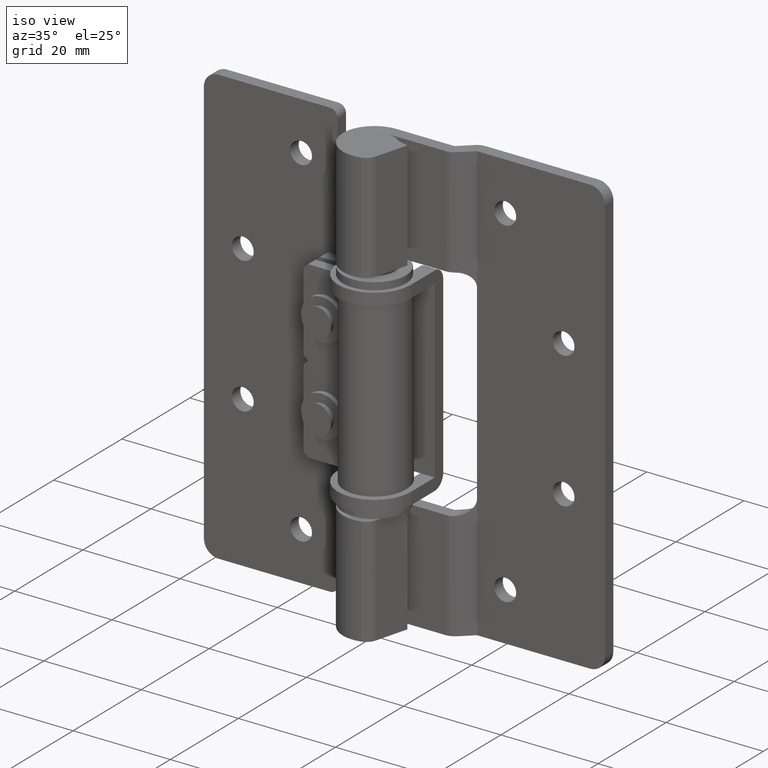
[diagram: clean part render]
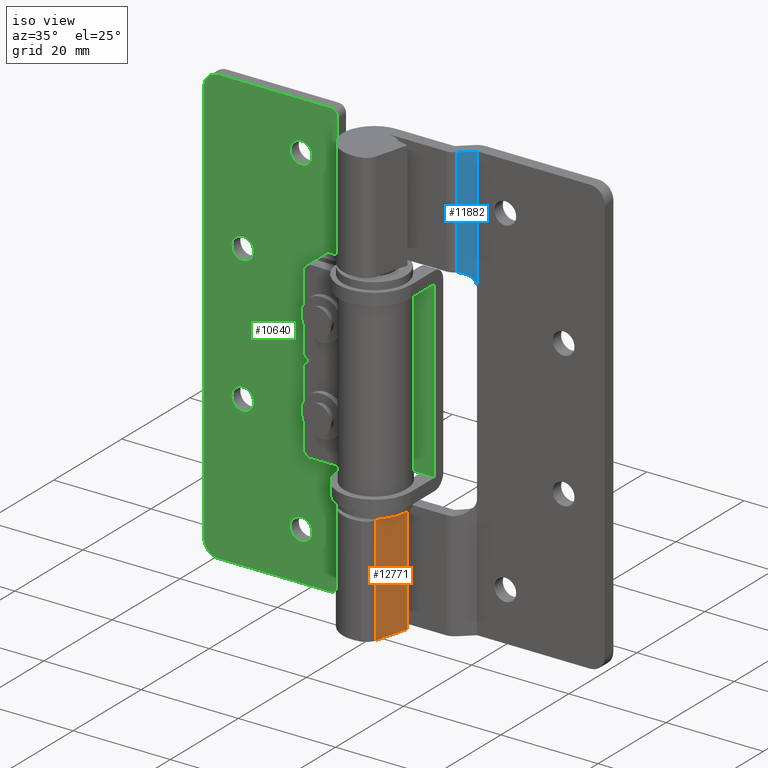
[diagram: same view with three faces highlighted in distinct colors, each labeled with its STEP entity id]
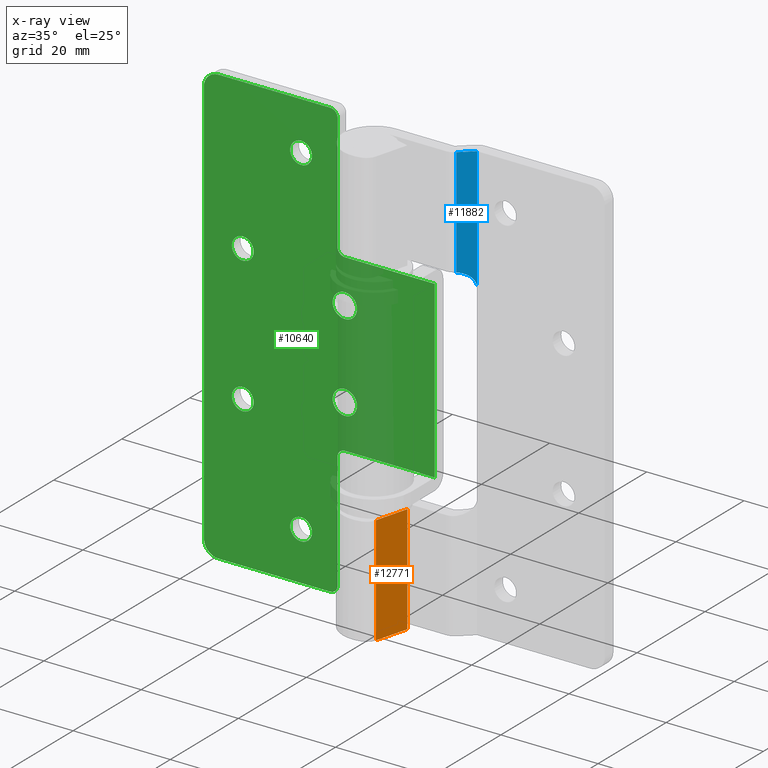
[diagram: x-ray of the same camera — body ghosted, the three highlighted faces saturated]
A machine part, iso view with three faces highlighted in distinct colors.
The next image is the same camera in x-ray (body ghosted, the three faces saturated) — at least one of them is partly hidden behind the body in this view.
Their STEP definitions:

[orange] entity #12771 — the highlighted face is a freeform B-spline surface patch.
#12330=CARTESIAN_POINT('',(3.450090746132370,-4.510750917912570,22.350000000000001));
#12331=VERTEX_POINT('',#12330);
#12345=CARTESIAN_POINT('',(5.243241690468611,2.181379511989865,22.350000000000001));
#12346=VERTEX_POINT('',#12345);
#12347=CARTESIAN_POINT('',(5.243241690468611,2.181379511989865,22.350000000000001));
#12348=CARTESIAN_POINT('',(3.450090746132370,-4.510750917912570,22.350000000000001));
#12349=QUASI_UNIFORM_CURVE('',1,(#12347,#12348),.UNSPECIFIED.,.F.,.U.);
#12350=EDGE_CURVE('',#12346,#12331,#12349,.T.);
#12550=CARTESIAN_POINT('',(5.243241690468611,2.181379511989860,0.0));
#12551=VERTEX_POINT('',#12550);
#12557=CARTESIAN_POINT('',(3.450090746132385,-4.510750917912570,0.0));
#12558=VERTEX_POINT('',#12557);
#12559=CARTESIAN_POINT('',(3.450090746132385,-4.510750917912570,0.0));
#12560=CARTESIAN_POINT('',(5.243241690468611,2.181379511989860,0.0));
#12561=QUASI_UNIFORM_CURVE('',1,(#12559,#12560),.UNSPECIFIED.,.F.,.U.);
#12562=EDGE_CURVE('',#12558,#12551,#12561,.T.);
#12747=CARTESIAN_POINT('',(5.243241690468611,2.181379511989865,22.350000000000001));
#12748=CARTESIAN_POINT('',(5.243241690468611,2.181379511989860,0.0));
#12749=QUASI_UNIFORM_CURVE('',1,(#12747,#12748),.UNSPECIFIED.,.F.,.U.);
#12750=EDGE_CURVE('',#12346,#12551,#12749,.T.);
#12756=CARTESIAN_POINT('',(5.332809576662730,2.515651413992844,-1.116382456681362));
#12757=CARTESIAN_POINT('',(3.360522811842194,-4.845022999412475,-1.116382456681362));
#12758=CARTESIAN_POINT('',(5.332809576662730,2.515651413992844,23.466383056155081));
#12759=CARTESIAN_POINT('',(3.360522811842194,-4.845022999412475,23.466383056155081));
#12760=B_SPLINE_SURFACE_WITH_KNOTS('',1,1,((#12756,#12758),(#12757,#12759)),.UNSPECIFIED.,.F.,.F.,.U.,(2,2),(2,2),(0.0,7.620330891952526),(0.0,24.582765512836438),.UNSPECIFIED.);
#12761=ORIENTED_EDGE('',*,*,#12750,.F.);
#12762=ORIENTED_EDGE('',*,*,#12350,.T.);
#12763=CARTESIAN_POINT('',(3.450090746132370,-4.510750917912570,22.350000000000001));
#12764=CARTESIAN_POINT('',(3.450090746132385,-4.510750917912570,0.0));
#12765=QUASI_UNIFORM_CURVE('',1,(#12763,#12764),.UNSPECIFIED.,.F.,.U.);
#12766=EDGE_CURVE('',#12331,#12558,#12765,.T.);
#12767=ORIENTED_EDGE('',*,*,#12766,.T.);
#12768=ORIENTED_EDGE('',*,*,#12562,.T.);
#12769=EDGE_LOOP('',(#12761,#12762,#12767,#12768));
#12770=FACE_OUTER_BOUND('',#12769,.T.);
#12771=ADVANCED_FACE('',(#12770),#12760,.F.);

[blue] entity #11882 — the highlighted face is a freeform B-spline surface patch.
#11454=CARTESIAN_POINT('',(16.199999999999999,7.000000000005000,64.650000000000006));
#11455=VERTEX_POINT('',#11454);
#11461=CARTESIAN_POINT('',(13.591825702712359,4.644609126216690,67.624302038916198));
#11462=VERTEX_POINT('',#11461);
#11463=CARTESIAN_POINT('',(16.199999999999999,7.000000000005000,64.650000000000006));
#11464=CARTESIAN_POINT('',(16.200000000000006,7.000000000016505,67.280708915743233));
#11465=CARTESIAN_POINT('',(13.591825702703289,4.644609126225073,67.624302038916198));
#11473=(BOUNDED_CURVE()B_SPLINE_CURVE(2,(#11463,#11464,#11465),.UNSPECIFIED.,.F.,.U.)CURVE()GEOMETRIC_REPRESENTATION_ITEM()QUASI_UNIFORM_CURVE()RATIONAL_B_SPLINE_CURVE((1.0,0.751867198236418,1.0))REPRESENTATION_ITEM(''));
#11474=EDGE_CURVE('',#11455,#11462,#11473,.T.);
#11631=CARTESIAN_POINT('',(13.591825702712359,4.644609126216690,90.0));
#11632=VERTEX_POINT('',#11631);
#11633=CARTESIAN_POINT('',(13.591825702712359,4.644609126216690,90.0));
#11634=CARTESIAN_POINT('',(13.591825702712359,4.644609126216690,67.624302038916198));
#11635=QUASI_UNIFORM_CURVE('',1,(#11633,#11634),.UNSPECIFIED.,.F.,.U.);
#11636=EDGE_CURVE('',#11632,#11462,#11635,.T.);
#11741=CARTESIAN_POINT('',(16.199999999999999,7.0,90.0));
#11742=VERTEX_POINT('',#11741);
#11748=CARTESIAN_POINT('',(16.199999999999999,7.0,90.0));
#11749=CARTESIAN_POINT('',(16.199999999999999,7.000000000005000,64.650000000000006));
#11750=QUASI_UNIFORM_CURVE('',1,(#11748,#11749),.UNSPECIFIED.,.F.,.U.);
#11751=EDGE_CURVE('',#11742,#11455,#11750,.T.);
#11867=CARTESIAN_POINT('',(16.330278301097039,7.117651769582565,63.383767549133232));
#11868=CARTESIAN_POINT('',(13.461547331661190,4.526957293459781,63.383767549133232));
#11869=CARTESIAN_POINT('',(16.330278301097039,7.117651769582565,91.266233130806768));
#11870=CARTESIAN_POINT('',(13.461547331661190,4.526957293459781,91.266233130806768));
#11871=B_SPLINE_SURFACE_WITH_KNOTS('',1,1,((#11867,#11869),(#11868,#11870)),.UNSPECIFIED.,.F.,.F.,.U.,(2,2),(2,2),(0.0,3.865399752110178),(0.0,27.882465581673539),.UNSPECIFIED.);
#11872=ORIENTED_EDGE('',*,*,#11474,.F.);
#11873=ORIENTED_EDGE('',*,*,#11751,.F.);
#11874=CARTESIAN_POINT('',(13.591825702712359,4.644609126216690,90.0));
#11875=CARTESIAN_POINT('',(16.199999999999999,7.0,90.0));
#11876=QUASI_UNIFORM_CURVE('',1,(#11874,#11875),.UNSPECIFIED.,.F.,.U.);
#11877=EDGE_CURVE('',#11632,#11742,#11876,.T.);
#11878=ORIENTED_EDGE('',*,*,#11877,.F.);
#11879=ORIENTED_EDGE('',*,*,#11636,.T.);
#11880=EDGE_LOOP('',(#11872,#11873,#11878,#11879));
#11881=FACE_OUTER_BOUND('',#11880,.T.);
#11882=ADVANCED_FACE('',(#11881),#11871,.F.);

[green] entity #10640 — the highlighted face is a freeform B-spline surface patch.
#8070=CARTESIAN_POINT('',(-13.495336996145250,7.000000000167555,53.847378649895958));
#8071=VERTEX_POINT('',#8070);
#8077=CARTESIAN_POINT('',(-11.000000000000201,7.000000000000110,51.499999999999893));
#8078=VERTEX_POINT('',#8077);
#8079=CARTESIAN_POINT('',(-11.000000000000201,7.000000000000110,51.499999999999893));
#8080=CARTESIAN_POINT('',(-13.351765166161528,7.000000000083833,51.499999999994778));
#8081=CARTESIAN_POINT('',(-13.495336996145248,7.000000000167555,53.847378649895958));
#8089=(BOUNDED_CURVE()B_SPLINE_CURVE(2,(#8079,#8080,#8081),.UNSPECIFIED.,.F.,.U.)B_SPLINE_CURVE_WITH_KNOTS((3,3),(0.500000000000000,0.739332962155072),.UNSPECIFIED.)CURVE()GEOMETRIC_REPRESENTATION_ITEM()RATIONAL_B_SPLINE_CURVE((1.0,0.719603993384971,0.976072041486967))REPRESENTATION_ITEM(''));
#8090=EDGE_CURVE('',#8078,#8071,#8089,.T.);
#8092=CARTESIAN_POINT('',(-8.504663003855148,7.000000000167555,54.152621350104042));
#8093=VERTEX_POINT('',#8092);
#8094=CARTESIAN_POINT('',(-8.504663003855148,7.000000000167556,54.152621350104042));
#8095=CARTESIAN_POINT('',(-8.499999999835355,7.000000000165150,54.076381908886646));
#8096=CARTESIAN_POINT('',(-8.499999999837909,7.000000000162592,54.000000000009912));
#8097=CARTESIAN_POINT('',(-8.499999999921474,7.000000000078869,51.500000000004704));
#8098=CARTESIAN_POINT('',(-11.000000000000201,7.000000000000110,51.499999999999893));
#8106=(BOUNDED_CURVE()B_SPLINE_CURVE(2,(#8094,#8095,#8096,#8097,#8098),.UNSPECIFIED.,.F.,.U.)B_SPLINE_CURVE_WITH_KNOTS((3,2,3),(0.239332962155072,0.250000000000000,0.500000000000000),.UNSPECIFIED.)CURVE()GEOMETRIC_REPRESENTATION_ITEM()RATIONAL_B_SPLINE_CURVE((0.976072041486967,0.987502787801577,1.0,0.707106781186547,1.0))REPRESENTATION_ITEM(''));
#8107=EDGE_CURVE('',#8093,#8078,#8106,.T.);
#8151=CARTESIAN_POINT('',(-11.000000000000201,7.000000000000110,56.500000000000107));
#8152=VERTEX_POINT('',#8151);
#8153=CARTESIAN_POINT('',(-11.000000000000201,7.000000000000110,56.500000000000107));
#8154=CARTESIAN_POINT('',(-8.648234833838867,7.000000000083832,56.500000000005222));
#8155=CARTESIAN_POINT('',(-8.504663003855148,7.000000000167555,54.152621350104042));
#8163=(BOUNDED_CURVE()B_SPLINE_CURVE(2,(#8153,#8154,#8155),.UNSPECIFIED.,.F.,.U.)B_SPLINE_CURVE_WITH_KNOTS((3,3),(0.0,0.239332962155073),.UNSPECIFIED.)CURVE()GEOMETRIC_REPRESENTATION_ITEM()RATIONAL_B_SPLINE_CURVE((1.0,0.719603993384970,0.976072041486968))REPRESENTATION_ITEM(''));
#8164=EDGE_CURVE('',#8152,#8093,#8163,.T.);
#8166=CARTESIAN_POINT('',(-13.495336996145252,7.000000000167555,53.847378649895958));
#8167=CARTESIAN_POINT('',(-13.500000000165045,7.000000000165150,53.923618091113347));
#8168=CARTESIAN_POINT('',(-13.500000000162490,7.000000000162592,53.999999999990088));
#8169=CARTESIAN_POINT('',(-13.500000000078924,7.000000000078869,56.499999999995303));
#8170=CARTESIAN_POINT('',(-11.000000000000201,7.000000000000110,56.500000000000107));
#8178=(BOUNDED_CURVE()B_SPLINE_CURVE(2,(#8166,#8167,#8168,#8169,#8170),.UNSPECIFIED.,.F.,.U.)B_SPLINE_CURVE_WITH_KNOTS((3,2,3),(0.739332962155072,0.750000000000000,1.0),.UNSPECIFIED.)CURVE()GEOMETRIC_REPRESENTATION_ITEM()RATIONAL_B_SPLINE_CURVE((0.976072041486967,0.987502787801577,1.0,0.707106781186547,1.0))REPRESENTATION_ITEM(''));
#8179=EDGE_CURVE('',#8071,#8152,#8178,.T.);
#8252=CARTESIAN_POINT('',(-13.495336996099700,7.000000000083833,35.847378650522572));
#8253=VERTEX_POINT('',#8252);
#8259=CARTESIAN_POINT('',(-11.000000000000201,7.000000000000110,33.499999999999893));
#8260=VERTEX_POINT('',#8259);
#8261=CARTESIAN_POINT('',(-11.000000000000201,7.000000000000110,33.499999999999893));
#8262=CARTESIAN_POINT('',(-13.351765166161528,7.000000000083833,33.499999999994785));
#8263=CARTESIAN_POINT('',(-13.495336996145248,7.000000000167555,35.847378649895958));
#8271=(BOUNDED_CURVE()B_SPLINE_CURVE(2,(#8261,#8262,#8263),.UNSPECIFIED.,.F.,.U.)B_SPLINE_CURVE_WITH_KNOTS((3,3),(0.500000000000000,0.739332962155072),.UNSPECIFIED.)CURVE()GEOMETRIC_REPRESENTATION_ITEM()RATIONAL_B_SPLINE_CURVE((1.0,0.719603993384971,0.976072041486967))REPRESENTATION_ITEM(''));
#8272=EDGE_CURVE('',#8260,#8253,#8271,.T.);
#8274=CARTESIAN_POINT('',(-8.504663003900703,7.000000000083833,36.152621349477442));
#8275=VERTEX_POINT('',#8274);
#8276=CARTESIAN_POINT('',(-8.504663003900703,7.000000000083833,36.152621349477435));
#8277=CARTESIAN_POINT('',(-8.499999999835358,7.000000000165149,36.076381908886660));
#8278=CARTESIAN_POINT('',(-8.499999999837911,7.000000000162592,36.000000000009919));
#8279=CARTESIAN_POINT('',(-8.499999999921474,7.000000000078869,33.500000000004697));
#8280=CARTESIAN_POINT('',(-11.000000000000201,7.000000000000110,33.499999999999893));
#8288=(BOUNDED_CURVE()B_SPLINE_CURVE(2,(#8276,#8277,#8278,#8279,#8280),.UNSPECIFIED.,.F.,.U.)B_SPLINE_CURVE_WITH_KNOTS((3,2,3),(0.239332962155072,0.250000000000000,0.500000000000000),.UNSPECIFIED.)CURVE()GEOMETRIC_REPRESENTATION_ITEM()RATIONAL_B_SPLINE_CURVE((0.976072041486966,0.987502787801577,1.0,0.707106781186547,1.0))REPRESENTATION_ITEM(''));
#8289=EDGE_CURVE('',#8275,#8260,#8288,.T.);
#8333=CARTESIAN_POINT('',(-11.000000000000201,7.000000000000110,38.500000000000107));
#8334=VERTEX_POINT('',#8333);
#8335=CARTESIAN_POINT('',(-11.000000000000201,7.000000000000110,38.500000000000107));
#8336=CARTESIAN_POINT('',(-8.648234833838872,7.000000000083834,38.500000000005230));
#8337=CARTESIAN_POINT('',(-8.504663003855150,7.000000000167554,36.152621350104056));
#8345=(BOUNDED_CURVE()B_SPLINE_CURVE(2,(#8335,#8336,#8337),.UNSPECIFIED.,.F.,.U.)B_SPLINE_CURVE_WITH_KNOTS((3,3),(0.0,0.239332962155072),.UNSPECIFIED.)CURVE()GEOMETRIC_REPRESENTATION_ITEM()RATIONAL_B_SPLINE_CURVE((1.0,0.719603993384971,0.976072041486967))REPRESENTATION_ITEM(''));
#8346=EDGE_CURVE('',#8334,#8275,#8345,.T.);
#8348=CARTESIAN_POINT('',(-13.495336996099700,7.000000000083833,35.847378650522572));
#8349=CARTESIAN_POINT('',(-13.500000000165043,7.000000000165149,35.923618091113347));
#8350=CARTESIAN_POINT('',(-13.500000000162490,7.000000000162590,35.999999999990088));
#8351=CARTESIAN_POINT('',(-13.500000000078922,7.000000000078869,38.499999999995310));
#8352=CARTESIAN_POINT('',(-11.000000000000201,7.000000000000110,38.500000000000107));
#8360=(BOUNDED_CURVE()B_SPLINE_CURVE(2,(#8348,#8349,#8350,#8351,#8352),.UNSPECIFIED.,.F.,.U.)B_SPLINE_CURVE_WITH_KNOTS((3,2,3),(0.739332962155072,0.750000000000000,1.0),.UNSPECIFIED.)CURVE()GEOMETRIC_REPRESENTATION_ITEM()RATIONAL_B_SPLINE_CURVE((0.976072041486967,0.987502787801577,1.0,0.707106781186547,1.0))REPRESENTATION_ITEM(''));
#8361=EDGE_CURVE('',#8253,#8334,#8360,.T.);
#8434=CARTESIAN_POINT('',(-17.756935999121211,7.000000000000001,79.823467034348738));
#8435=VERTEX_POINT('',#8434);
#8441=CARTESIAN_POINT('',(-20.0,7.0,82.250000000000000));
#8442=VERTEX_POINT('',#8441);
#8443=CARTESIAN_POINT('',(-17.756935999121204,7.0,79.823467034348752));
#8444=CARTESIAN_POINT('',(-17.750000000000000,7.0,79.911597259100333));
#8445=CARTESIAN_POINT('',(-17.750000000000000,7.0,80.0));
#8446=CARTESIAN_POINT('',(-17.750000000000004,6.999999999999999,82.250000000000000));
#8447=CARTESIAN_POINT('',(-20.0,7.0,82.250000000000000));
#8455=(BOUNDED_CURVE()B_SPLINE_CURVE(2,(#8443,#8444,#8445,#8446,#8447),.UNSPECIFIED.,.F.,.U.)B_SPLINE_CURVE_WITH_KNOTS((3,2,3),(0.736331300612621,0.750000000000000,1.0),.UNSPECIFIED.)CURVE()GEOMETRIC_REPRESENTATION_ITEM()RATIONAL_B_SPLINE_CURVE((0.969723356129773,0.983986122557749,1.0,0.707106781186547,1.0))REPRESENTATION_ITEM(''));
#8456=EDGE_CURVE('',#8435,#8442,#8455,.T.);
#8458=CARTESIAN_POINT('',(-22.243064000878789,7.0,80.176532965651262));
#8459=VERTEX_POINT('',#8458);
#8460=CARTESIAN_POINT('',(-20.0,7.0,82.250000000000000));
#8461=CARTESIAN_POINT('',(-22.079878605985773,6.999999999999999,82.250000000000000));
#8462=CARTESIAN_POINT('',(-22.243064000878793,7.000000000000001,80.176532965651262));
#8470=(BOUNDED_CURVE()B_SPLINE_CURVE(2,(#8460,#8461,#8462),.UNSPECIFIED.,.F.,.U.)B_SPLINE_CURVE_WITH_KNOTS((3,3),(0.0,0.236331300612621),.UNSPECIFIED.)CURVE()GEOMETRIC_REPRESENTATION_ITEM()RATIONAL_B_SPLINE_CURVE((1.0,0.723120658628799,0.969723356129772))REPRESENTATION_ITEM(''));
#8471=EDGE_CURVE('',#8442,#8459,#8470,.T.);
#8517=CARTESIAN_POINT('',(-20.0,7.0,77.750000000000000));
#8518=VERTEX_POINT('',#8517);
#8519=CARTESIAN_POINT('',(-22.243064000878796,7.000000000000001,80.176532965651276));
#8520=CARTESIAN_POINT('',(-22.250000000000000,7.0,80.088402740899681));
#8521=CARTESIAN_POINT('',(-22.250000000000000,7.0,80.0));
#8522=CARTESIAN_POINT('',(-22.250000000000000,6.999999999999999,77.750000000000014));
#8523=CARTESIAN_POINT('',(-20.0,7.0,77.750000000000000));
#8531=(BOUNDED_CURVE()B_SPLINE_CURVE(2,(#8519,#8520,#8521,#8522,#8523),.UNSPECIFIED.,.F.,.U.)B_SPLINE_CURVE_WITH_KNOTS((3,2,3),(0.236331300612621,0.250000000000000,0.500000000000000),.UNSPECIFIED.)CURVE()GEOMETRIC_REPRESENTATION_ITEM()RATIONAL_B_SPLINE_CURVE((0.969723356129772,0.983986122557748,1.0,0.707106781186547,1.0))REPRESENTATION_ITEM(''));
#8532=EDGE_CURVE('',#8459,#8518,#8531,.T.);
#8534=CARTESIAN_POINT('',(-20.0,7.0,77.750000000000000));
#8535=CARTESIAN_POINT('',(-17.920121394014231,6.999999999999998,77.750000000000000));
#8536=CARTESIAN_POINT('',(-17.756935999121215,7.0,79.823467034348724));
#8544=(BOUNDED_CURVE()B_SPLINE_CURVE(2,(#8534,#8535,#8536),.UNSPECIFIED.,.F.,.U.)B_SPLINE_CURVE_WITH_KNOTS((3,3),(0.500000000000000,0.736331300612620),.UNSPECIFIED.)CURVE()GEOMETRIC_REPRESENTATION_ITEM()RATIONAL_B_SPLINE_CURVE((1.0,0.723120658628800,0.969723356129771))REPRESENTATION_ITEM(''));
#8545=EDGE_CURVE('',#8518,#8435,#8544,.T.);
#8616=CARTESIAN_POINT('',(-29.756935999121211,7.0,58.823467034348752));
#8617=VERTEX_POINT('',#8616);
#8623=CARTESIAN_POINT('',(-32.0,7.0,61.250000000000000));
#8624=VERTEX_POINT('',#8623);
#8625=CARTESIAN_POINT('',(-29.756935999121215,7.000000000000001,58.823467034348738));
#8626=CARTESIAN_POINT('',(-29.750000000000007,7.0,58.911597259100340));
#8627=CARTESIAN_POINT('',(-29.750000000000000,7.0,59.0));
#8628=CARTESIAN_POINT('',(-29.750000000000007,6.999999999999999,61.250000000000000));
#8629=CARTESIAN_POINT('',(-32.0,7.0,61.250000000000000));
#8637=(BOUNDED_CURVE()B_SPLINE_CURVE(2,(#8625,#8626,#8627,#8628,#8629),.UNSPECIFIED.,.F.,.U.)B_SPLINE_CURVE_WITH_KNOTS((3,2,3),(0.736331300612622,0.750000000000000,1.0),.UNSPECIFIED.)CURVE()GEOMETRIC_REPRESENTATION_ITEM()RATIONAL_B_SPLINE_CURVE((0.969723356129774,0.983986122557749,1.0,0.707106781186547,1.0))REPRESENTATION_ITEM(''));
#8638=EDGE_CURVE('',#8617,#8624,#8637,.T.);
#8640=CARTESIAN_POINT('',(-34.243064000878789,7.000000000000001,59.176532965651248));
#8641=VERTEX_POINT('',#8640);
#8642=CARTESIAN_POINT('',(-32.0,7.0,61.250000000000000));
#8643=CARTESIAN_POINT('',(-34.079878605985783,6.999999999999999,61.249999999999993));
#8644=CARTESIAN_POINT('',(-34.243064000878789,7.000000000000001,59.176532965651262));
#8652=(BOUNDED_CURVE()B_SPLINE_CURVE(2,(#8642,#8643,#8644),.UNSPECIFIED.,.F.,.U.)B_SPLINE_CURVE_WITH_KNOTS((3,3),(0.0,0.236331300612621),.UNSPECIFIED.)CURVE()GEOMETRIC_REPRESENTATION_ITEM()RATIONAL_B_SPLINE_CURVE((1.0,0.723120658628799,0.969723356129773))REPRESENTATION_ITEM(''));
#8653=EDGE_CURVE('',#8624,#8641,#8652,.T.);
#8699=CARTESIAN_POINT('',(-32.0,7.0,56.749999999999993));
#8700=VERTEX_POINT('',#8699);
#8701=CARTESIAN_POINT('',(-34.243064000878789,7.000000000000001,59.176532965651262));
#8702=CARTESIAN_POINT('',(-34.250000000000000,7.000000000000001,59.088402740899681));
#8703=CARTESIAN_POINT('',(-34.250000000000000,7.0,59.0));
#8704=CARTESIAN_POINT('',(-34.250000000000000,6.999999999999999,56.749999999999993));
#8705=CARTESIAN_POINT('',(-32.0,7.0,56.749999999999993));
#8713=(BOUNDED_CURVE()B_SPLINE_CURVE(2,(#8701,#8702,#8703,#8704,#8705),.UNSPECIFIED.,.F.,.U.)B_SPLINE_CURVE_WITH_KNOTS((3,2,3),(0.236331300612621,0.250000000000000,0.500000000000000),.UNSPECIFIED.)CURVE()GEOMETRIC_REPRESENTATION_ITEM()RATIONAL_B_SPLINE_CURVE((0.969723356129773,0.983986122557749,1.0,0.707106781186547,1.0))REPRESENTATION_ITEM(''));
#8714=EDGE_CURVE('',#8641,#8700,#8713,.T.);
#8716=CARTESIAN_POINT('',(-32.0,7.0,56.749999999999993));
#8717=CARTESIAN_POINT('',(-29.920121394014227,6.999999999999999,56.749999999999986));
#8718=CARTESIAN_POINT('',(-29.756935999121211,6.999999999999999,58.823467034348731));
#8726=(BOUNDED_CURVE()B_SPLINE_CURVE(2,(#8716,#8717,#8718),.UNSPECIFIED.,.F.,.U.)B_SPLINE_CURVE_WITH_KNOTS((3,3),(0.500000000000000,0.736331300612621),.UNSPECIFIED.)CURVE()GEOMETRIC_REPRESENTATION_ITEM()RATIONAL_B_SPLINE_CURVE((1.0,0.723120658628799,0.969723356129772))REPRESENTATION_ITEM(''));
#8727=EDGE_CURVE('',#8700,#8617,#8726,.T.);
#8798=CARTESIAN_POINT('',(-17.756935999121211,7.0,9.823467034348743));
#8799=VERTEX_POINT('',#8798);
#8805=CARTESIAN_POINT('',(-20.0,7.0,12.250000000000000));
#8806=VERTEX_POINT('',#8805);
#8807=CARTESIAN_POINT('',(-17.756935999121215,7.0,9.823467034348738));
#8808=CARTESIAN_POINT('',(-17.750000000000007,7.0,9.911597259100326));
#8809=CARTESIAN_POINT('',(-17.750000000000000,7.0,10.0));
#8810=CARTESIAN_POINT('',(-17.750000000000004,6.999999999999999,12.249999999999996));
#8811=CARTESIAN_POINT('',(-20.0,7.0,12.250000000000000));
#8819=(BOUNDED_CURVE()B_SPLINE_CURVE(2,(#8807,#8808,#8809,#8810,#8811),.UNSPECIFIED.,.F.,.U.)B_SPLINE_CURVE_WITH_KNOTS((3,2,3),(0.736331300612621,0.750000000000000,1.0),.UNSPECIFIED.)CURVE()GEOMETRIC_REPRESENTATION_ITEM()RATIONAL_B_SPLINE_CURVE((0.969723356129773,0.983986122557748,1.0,0.707106781186547,1.0))REPRESENTATION_ITEM(''));
#8820=EDGE_CURVE('',#8799,#8806,#8819,.T.);
#8822=CARTESIAN_POINT('',(-22.243064000878789,7.0,10.176532965651260));
#8823=VERTEX_POINT('',#8822);
#8824=CARTESIAN_POINT('',(-20.0,7.0,12.250000000000000));
#8825=CARTESIAN_POINT('',(-22.079878605985783,6.999999999999998,12.249999999999998));
#8826=CARTESIAN_POINT('',(-22.243064000878796,6.999999999999999,10.176532965651258));
#8834=(BOUNDED_CURVE()B_SPLINE_CURVE(2,(#8824,#8825,#8826),.UNSPECIFIED.,.F.,.U.)B_SPLINE_CURVE_WITH_KNOTS((3,3),(0.0,0.236331300612621),.UNSPECIFIED.)CURVE()GEOMETRIC_REPRESENTATION_ITEM()RATIONAL_B_SPLINE_CURVE((1.0,0.723120658628799,0.969723356129772))REPRESENTATION_ITEM(''));
#8835=EDGE_CURVE('',#8806,#8823,#8834,.T.);
#8881=CARTESIAN_POINT('',(-20.0,7.0,7.750000000000000));
#8882=VERTEX_POINT('',#8881);
#8883=CARTESIAN_POINT('',(-22.243064000878789,7.0,10.176532965651258));
#8884=CARTESIAN_POINT('',(-22.250000000000004,7.000000000000001,10.088402740899673));
#8885=CARTESIAN_POINT('',(-22.250000000000000,7.0,10.0));
#8886=CARTESIAN_POINT('',(-22.250000000000000,6.999999999999999,7.750000000000001));
#8887=CARTESIAN_POINT('',(-20.0,7.0,7.750000000000000));
#8895=(BOUNDED_CURVE()B_SPLINE_CURVE(2,(#8883,#8884,#8885,#8886,#8887),.UNSPECIFIED.,.F.,.U.)B_SPLINE_CURVE_WITH_KNOTS((3,2,3),(0.236331300612621,0.250000000000000,0.500000000000000),.UNSPECIFIED.)CURVE()GEOMETRIC_REPRESENTATION_ITEM()RATIONAL_B_SPLINE_CURVE((0.969723356129772,0.983986122557748,1.0,0.707106781186547,1.0))REPRESENTATION_ITEM(''));
#8896=EDGE_CURVE('',#8823,#8882,#8895,.T.);
#8898=CARTESIAN_POINT('',(-20.0,7.0,7.750000000000000));
#8899=CARTESIAN_POINT('',(-17.920121394014224,6.999999999999998,7.749999999999999));
#8900=CARTESIAN_POINT('',(-17.756935999121215,7.0,9.823467034348738));
#8908=(BOUNDED_CURVE()B_SPLINE_CURVE(2,(#8898,#8899,#8900),.UNSPECIFIED.,.F.,.U.)B_SPLINE_CURVE_WITH_KNOTS((3,3),(0.500000000000000,0.736331300612621),.UNSPECIFIED.)CURVE()GEOMETRIC_REPRESENTATION_ITEM()RATIONAL_B_SPLINE_CURVE((1.0,0.723120658628799,0.969723356129773))REPRESENTATION_ITEM(''));
#8909=EDGE_CURVE('',#8882,#8799,#8908,.T.);
#8980=CARTESIAN_POINT('',(-29.756935999121211,7.0,30.823467034348731));
#8981=VERTEX_POINT('',#8980);
#8987=CARTESIAN_POINT('',(-32.0,7.0,33.250000000000000));
#8988=VERTEX_POINT('',#8987);
#8989=CARTESIAN_POINT('',(-29.756935999121218,7.0,30.823467034348731));
#8990=CARTESIAN_POINT('',(-29.750000000000004,7.0,30.911597259100322));
#8991=CARTESIAN_POINT('',(-29.750000000000000,7.0,31.0));
#8992=CARTESIAN_POINT('',(-29.750000000000007,6.999999999999999,33.249999999999993));
#8993=CARTESIAN_POINT('',(-32.0,7.0,33.250000000000000));
#9001=(BOUNDED_CURVE()B_SPLINE_CURVE(2,(#8989,#8990,#8991,#8992,#8993),.UNSPECIFIED.,.F.,.U.)B_SPLINE_CURVE_WITH_KNOTS((3,2,3),(0.736331300612620,0.750000000000000,1.0),.UNSPECIFIED.)CURVE()GEOMETRIC_REPRESENTATION_ITEM()RATIONAL_B_SPLINE_CURVE((0.969723356129771,0.983986122557748,1.0,0.707106781186547,1.0))REPRESENTATION_ITEM(''));
#9002=EDGE_CURVE('',#8981,#8988,#9001,.T.);
#9004=CARTESIAN_POINT('',(-34.243064000878789,7.0,31.176532965651258));
#9005=VERTEX_POINT('',#9004);
#9006=CARTESIAN_POINT('',(-32.0,7.0,33.250000000000000));
#9007=CARTESIAN_POINT('',(-34.079878605985790,6.999999999999999,33.250000000000007));
#9008=CARTESIAN_POINT('',(-34.243064000878796,7.0,31.176532965651262));
#9016=(BOUNDED_CURVE()B_SPLINE_CURVE(2,(#9006,#9007,#9008),.UNSPECIFIED.,.F.,.U.)B_SPLINE_CURVE_WITH_KNOTS((3,3),(0.0,0.236331300612621),.UNSPECIFIED.)CURVE()GEOMETRIC_REPRESENTATION_ITEM()RATIONAL_B_SPLINE_CURVE((1.0,0.723120658628799,0.969723356129773))REPRESENTATION_ITEM(''));
#9017=EDGE_CURVE('',#8988,#9005,#9016,.T.);
#9063=CARTESIAN_POINT('',(-32.0,7.0,28.750000000000000));
#9064=VERTEX_POINT('',#9063);
#9065=CARTESIAN_POINT('',(-34.243064000878796,7.0,31.176532965651262));
#9066=CARTESIAN_POINT('',(-34.250000000000007,7.0,31.088402740899674));
#9067=CARTESIAN_POINT('',(-34.250000000000000,7.0,31.0));
#9068=CARTESIAN_POINT('',(-34.250000000000000,6.999999999999999,28.750000000000000));
#9069=CARTESIAN_POINT('',(-32.0,7.0,28.750000000000000));
#9077=(BOUNDED_CURVE()B_SPLINE_CURVE(2,(#9065,#9066,#9067,#9068,#9069),.UNSPECIFIED.,.F.,.U.)B_SPLINE_CURVE_WITH_KNOTS((3,2,3),(0.236331300612621,0.250000000000000,0.500000000000000),.UNSPECIFIED.)CURVE()GEOMETRIC_REPRESENTATION_ITEM()RATIONAL_B_SPLINE_CURVE((0.969723356129773,0.983986122557749,1.0,0.707106781186547,1.0))REPRESENTATION_ITEM(''));
#9078=EDGE_CURVE('',#9005,#9064,#9077,.T.);
#9080=CARTESIAN_POINT('',(-32.0,7.0,28.750000000000000));
#9081=CARTESIAN_POINT('',(-29.920121394014227,7.000000000000001,28.750000000000000));
#9082=CARTESIAN_POINT('',(-29.756935999121218,7.0,30.823467034348731));
#9090=(BOUNDED_CURVE()B_SPLINE_CURVE(2,(#9080,#9081,#9082),.UNSPECIFIED.,.F.,.U.)B_SPLINE_CURVE_WITH_KNOTS((3,3),(0.500000000000000,0.736331300612620),.UNSPECIFIED.)CURVE()GEOMETRIC_REPRESENTATION_ITEM()RATIONAL_B_SPLINE_CURVE((1.0,0.723120658628800,0.969723356129771))REPRESENTATION_ITEM(''));
#9091=EDGE_CURVE('',#9064,#8981,#9090,.T.);
#9124=CARTESIAN_POINT('',(-40.0,7.0,3.0));
#9125=VERTEX_POINT('',#9124);
#9131=CARTESIAN_POINT('',(-40.0,7.0,87.0));
#9132=VERTEX_POINT('',#9131);
#9133=CARTESIAN_POINT('',(-40.0,7.0,3.0));
#9134=CARTESIAN_POINT('',(-40.0,7.0,87.0));
#9135=QUASI_UNIFORM_CURVE('',1,(#9133,#9134),.UNSPECIFIED.,.F.,.U.);
#9136=EDGE_CURVE('',#9125,#9132,#9135,.T.);
#9160=CARTESIAN_POINT('',(-13.999999999999799,7.0,0.0));
#9161=VERTEX_POINT('',#9160);
#9167=CARTESIAN_POINT('',(-37.0,7.0,0.0));
#9168=VERTEX_POINT('',#9167);
#9169=CARTESIAN_POINT('',(-13.999999999999799,7.0,0.0));
#9170=CARTESIAN_POINT('',(-37.0,7.0,0.0));
#9171=QUASI_UNIFORM_CURVE('',1,(#9169,#9170),.UNSPECIFIED.,.F.,.U.);
#9172=EDGE_CURVE('',#9161,#9168,#9171,.T.);
#9196=CARTESIAN_POINT('',(-12.499999999999719,7.0,25.500000000000000));
#9197=VERTEX_POINT('',#9196);
#9203=CARTESIAN_POINT('',(-12.499999999999799,7.0,1.500000000000000));
#9204=VERTEX_POINT('',#9203);
#9205=CARTESIAN_POINT('',(-12.499999999999719,7.0,25.500000000000000));
#9206=CARTESIAN_POINT('',(-12.499999999999799,7.0,1.500000000000000));
#9207=QUASI_UNIFORM_CURVE('',1,(#9205,#9206),.UNSPECIFIED.,.F.,.U.);
#9208=EDGE_CURVE('',#9197,#9204,#9207,.T.);
#9261=CARTESIAN_POINT('',(7.499999999999880,7.0,63.0));
#9262=VERTEX_POINT('',#9261);
#9268=CARTESIAN_POINT('',(7.500000000000000,7.0,27.0));
#9269=VERTEX_POINT('',#9268);
#9270=CARTESIAN_POINT('',(7.499999999999880,7.0,63.0));
#9271=CARTESIAN_POINT('',(7.500000000000000,7.0,27.0));
#9272=QUASI_UNIFORM_CURVE('',1,(#9270,#9271),.UNSPECIFIED.,.F.,.U.);
#9273=EDGE_CURVE('',#9262,#9269,#9272,.T.);
#9326=CARTESIAN_POINT('',(-12.499999999999799,7.0,88.500000000000000));
#9327=VERTEX_POINT('',#9326);
#9333=CARTESIAN_POINT('',(-12.499999999999799,7.0,64.500000000000000));
#9334=VERTEX_POINT('',#9333);
#9335=CARTESIAN_POINT('',(-12.499999999999799,7.0,88.500000000000000));
#9336=CARTESIAN_POINT('',(-12.499999999999799,7.0,64.500000000000000));
#9337=QUASI_UNIFORM_CURVE('',1,(#9335,#9336),.UNSPECIFIED.,.F.,.U.);
#9338=EDGE_CURVE('',#9327,#9334,#9337,.T.);
#9353=CARTESIAN_POINT('',(-37.0,7.0,90.0));
#9354=VERTEX_POINT('',#9353);
#9355=CARTESIAN_POINT('',(-13.999999999999799,7.0,90.0));
#9356=VERTEX_POINT('',#9355);
#9357=CARTESIAN_POINT('',(-37.0,7.0,90.0));
#9358=CARTESIAN_POINT('',(-13.999999999999799,7.0,90.0));
#9359=QUASI_UNIFORM_CURVE('',1,(#9357,#9358),.UNSPECIFIED.,.F.,.U.);
#9360=EDGE_CURVE('',#9354,#9356,#9359,.T.);
#9398=CARTESIAN_POINT('',(4.499999999999605,7.0,27.0));
#9399=VERTEX_POINT('',#9398);
#9405=CARTESIAN_POINT('',(-4.499999999999915,7.0,27.0));
#9406=VERTEX_POINT('',#9405);
#9407=CARTESIAN_POINT('',(4.499999999999605,7.0,27.0));
#9408=CARTESIAN_POINT('',(-4.499999999999915,7.0,27.0));
#9409=QUASI_UNIFORM_CURVE('',1,(#9407,#9408),.UNSPECIFIED.,.F.,.U.);
#9410=EDGE_CURVE('',#9399,#9406,#9409,.T.);
#9434=CARTESIAN_POINT('',(-7.500000000000110,7.0,27.0));
#9435=VERTEX_POINT('',#9434);
#9441=CARTESIAN_POINT('',(-10.999999999999719,7.0,27.0));
#9442=VERTEX_POINT('',#9441);
#9443=CARTESIAN_POINT('',(-7.500000000000110,7.0,27.0));
#9444=CARTESIAN_POINT('',(-10.999999999999719,7.0,27.0));
#9445=QUASI_UNIFORM_CURVE('',1,(#9443,#9444),.UNSPECIFIED.,.F.,.U.);
#9446=EDGE_CURVE('',#9435,#9442,#9445,.T.);
#9461=CARTESIAN_POINT('',(-4.500000000000000,7.0,63.0));
#9462=VERTEX_POINT('',#9461);
#9463=CARTESIAN_POINT('',(4.499999999999480,7.0,63.0));
#9464=VERTEX_POINT('',#9463);
#9465=CARTESIAN_POINT('',(-4.500000000000000,7.0,63.0));
#9466=CARTESIAN_POINT('',(4.499999999999480,7.0,63.0));
#9467=QUASI_UNIFORM_CURVE('',1,(#9465,#9466),.UNSPECIFIED.,.F.,.U.);
#9468=EDGE_CURVE('',#9462,#9464,#9467,.T.);
#9924=CARTESIAN_POINT('',(-7.500000000000240,7.0,63.0));
#9925=VERTEX_POINT('',#9924);
#9945=CARTESIAN_POINT('',(7.499999999999880,7.0,63.0));
#9946=CARTESIAN_POINT('',(4.499999999999480,7.0,63.0));
#9947=QUASI_UNIFORM_CURVE('',1,(#9945,#9946),.UNSPECIFIED.,.F.,.U.);
#9948=EDGE_CURVE('',#9262,#9464,#9947,.T.);
#9953=CARTESIAN_POINT('',(-4.500000000000000,7.0,63.0));
#9954=CARTESIAN_POINT('',(-7.500000000000240,7.0,63.0));
#9955=QUASI_UNIFORM_CURVE('',1,(#9953,#9954),.UNSPECIFIED.,.F.,.U.);
#9956=EDGE_CURVE('',#9462,#9925,#9955,.T.);
#10209=CARTESIAN_POINT('',(7.500000000000000,7.0,27.0));
#10210=CARTESIAN_POINT('',(4.499999999999605,7.0,27.0));
#10211=QUASI_UNIFORM_CURVE('',1,(#10209,#10210),.UNSPECIFIED.,.F.,.U.);
#10212=EDGE_CURVE('',#9269,#9399,#10211,.T.);
#10217=CARTESIAN_POINT('',(-4.499999999999915,7.0,27.0));
#10218=CARTESIAN_POINT('',(-7.500000000000110,7.0,27.0));
#10219=QUASI_UNIFORM_CURVE('',1,(#10217,#10218),.UNSPECIFIED.,.F.,.U.);
#10220=EDGE_CURVE('',#9406,#9435,#10219,.T.);
#10241=CARTESIAN_POINT('',(-13.999999999999799,7.0,0.0));
#10242=CARTESIAN_POINT('',(-12.499999999999799,6.999999999999999,0.0));
#10243=CARTESIAN_POINT('',(-12.499999999999799,7.0,1.500000000000000));
#10251=(BOUNDED_CURVE()B_SPLINE_CURVE(2,(#10241,#10242,#10243),.UNSPECIFIED.,.F.,.U.)CURVE()GEOMETRIC_REPRESENTATION_ITEM()QUASI_UNIFORM_CURVE()RATIONAL_B_SPLINE_CURVE((1.0,0.707106781186548,1.0))REPRESENTATION_ITEM(''));
#10252=EDGE_CURVE('',#9161,#9204,#10251,.T.);
#10286=CARTESIAN_POINT('',(-12.499999999999719,7.0,25.500000000000000));
#10287=CARTESIAN_POINT('',(-12.499999999999718,6.999999999999999,27.000000000000011));
#10288=CARTESIAN_POINT('',(-10.999999999999719,7.0,27.0));
#10296=(BOUNDED_CURVE()B_SPLINE_CURVE(2,(#10286,#10287,#10288),.UNSPECIFIED.,.F.,.U.)CURVE()GEOMETRIC_REPRESENTATION_ITEM()QUASI_UNIFORM_CURVE()RATIONAL_B_SPLINE_CURVE((1.0,0.707106781186548,1.0))REPRESENTATION_ITEM(''));
#10297=EDGE_CURVE('',#9197,#9442,#10296,.T.);
#10331=CARTESIAN_POINT('',(-10.999999999999799,7.0,63.0));
#10332=VERTEX_POINT('',#10331);
#10333=CARTESIAN_POINT('',(-10.999999999999799,7.0,63.0));
#10334=CARTESIAN_POINT('',(-12.499999999999799,6.999999999999999,63.0));
#10335=CARTESIAN_POINT('',(-12.499999999999799,7.0,64.500000000000000));
#10343=(BOUNDED_CURVE()B_SPLINE_CURVE(2,(#10333,#10334,#10335),.UNSPECIFIED.,.F.,.U.)CURVE()GEOMETRIC_REPRESENTATION_ITEM()QUASI_UNIFORM_CURVE()RATIONAL_B_SPLINE_CURVE((1.0,0.707106781186548,1.0))REPRESENTATION_ITEM(''));
#10344=EDGE_CURVE('',#10332,#9334,#10343,.T.);
#10384=CARTESIAN_POINT('',(-12.499999999999799,7.0,88.500000000000000));
#10385=CARTESIAN_POINT('',(-12.499999999999799,6.999999999999999,89.999999999999986));
#10386=CARTESIAN_POINT('',(-13.999999999999799,7.0,90.0));
#10394=(BOUNDED_CURVE()B_SPLINE_CURVE(2,(#10384,#10385,#10386),.UNSPECIFIED.,.F.,.U.)CURVE()GEOMETRIC_REPRESENTATION_ITEM()QUASI_UNIFORM_CURVE()RATIONAL_B_SPLINE_CURVE((1.0,0.707106781186548,1.0))REPRESENTATION_ITEM(''));
#10395=EDGE_CURVE('',#9327,#9356,#10394,.T.);
#10429=CARTESIAN_POINT('',(-37.0,7.0,90.0));
#10430=CARTESIAN_POINT('',(-39.999999999999993,6.999999999999999,89.999999999999986));
#10431=CARTESIAN_POINT('',(-40.0,7.0,87.0));
#10439=(BOUNDED_CURVE()B_SPLINE_CURVE(2,(#10429,#10430,#10431),.UNSPECIFIED.,.F.,.U.)CURVE()GEOMETRIC_REPRESENTATION_ITEM()QUASI_UNIFORM_CURVE()RATIONAL_B_SPLINE_CURVE((1.0,0.707106781186548,1.0))REPRESENTATION_ITEM(''));
#10440=EDGE_CURVE('',#9354,#9132,#10439,.T.);
#10474=CARTESIAN_POINT('',(-40.0,7.0,3.0));
#10475=CARTESIAN_POINT('',(-39.999999999999993,6.999999999999999,0.0));
#10476=CARTESIAN_POINT('',(-37.0,7.0,0.0));
#10484=(BOUNDED_CURVE()B_SPLINE_CURVE(2,(#10474,#10475,#10476),.UNSPECIFIED.,.F.,.U.)CURVE()GEOMETRIC_REPRESENTATION_ITEM()QUASI_UNIFORM_CURVE()RATIONAL_B_SPLINE_CURVE((1.0,0.707106781186548,1.0))REPRESENTATION_ITEM(''));
#10485=EDGE_CURVE('',#9125,#9168,#10484,.T.);
#10573=CARTESIAN_POINT('',(-42.372624907935780,7.0,94.495499825562533));
#10574=CARTESIAN_POINT('',(9.872626181985067,7.0,94.495499825562533));
#10575=CARTESIAN_POINT('',(-42.372624907935780,7.0,-4.495502239550651));
#10576=CARTESIAN_POINT('',(9.872626181985067,7.0,-4.495502239550651));
#10577=B_SPLINE_SURFACE_WITH_KNOTS('',1,1,((#10573,#10575),(#10574,#10576)),.UNSPECIFIED.,.F.,.F.,.U.,(2,2),(2,2),(0.0,52.245251089920849),(0.0,98.991002065113179),.UNSPECIFIED.);
#10578=ORIENTED_EDGE('',*,*,#9338,.F.);
#10579=ORIENTED_EDGE('',*,*,#10395,.T.);
#10580=ORIENTED_EDGE('',*,*,#9360,.F.);
#10581=ORIENTED_EDGE('',*,*,#10440,.T.);
#10582=ORIENTED_EDGE('',*,*,#9136,.F.);
#10583=ORIENTED_EDGE('',*,*,#10485,.T.);
#10584=ORIENTED_EDGE('',*,*,#9172,.F.);
#10585=ORIENTED_EDGE('',*,*,#10252,.T.);
#10586=ORIENTED_EDGE('',*,*,#9208,.F.);
#10587=ORIENTED_EDGE('',*,*,#10297,.T.);
#10588=ORIENTED_EDGE('',*,*,#9446,.F.);
#10589=ORIENTED_EDGE('',*,*,#10220,.F.);
#10590=ORIENTED_EDGE('',*,*,#9410,.F.);
#10591=ORIENTED_EDGE('',*,*,#10212,.F.);
#10592=ORIENTED_EDGE('',*,*,#9273,.F.);
#10593=ORIENTED_EDGE('',*,*,#9948,.T.);
#10594=ORIENTED_EDGE('',*,*,#9468,.F.);
#10595=ORIENTED_EDGE('',*,*,#9956,.T.);
#10596=CARTESIAN_POINT('',(-10.999999999999799,7.0,63.0));
#10597=CARTESIAN_POINT('',(-7.500000000000240,7.0,63.0));
#10598=QUASI_UNIFORM_CURVE('',1,(#10596,#10597),.UNSPECIFIED.,.F.,.U.);
#10599=EDGE_CURVE('',#10332,#9925,#10598,.T.);
#10600=ORIENTED_EDGE('',*,*,#10599,.F.);
#10601=ORIENTED_EDGE('',*,*,#10344,.T.);
#10602=EDGE_LOOP('',(#10578,#10579,#10580,#10581,#10582,#10583,#10584,#10585,#10586,#10587,#10588,#10589,#10590,#10591,#10592,#10593,#10594,#10595,#10600,#10601));
#10603=FACE_OUTER_BOUND('',#10602,.T.);
#10604=ORIENTED_EDGE('',*,*,#9091,.F.);
#10605=ORIENTED_EDGE('',*,*,#9078,.F.);
#10606=ORIENTED_EDGE('',*,*,#9017,.F.);
#10607=ORIENTED_EDGE('',*,*,#9002,.F.);
#10608=EDGE_LOOP('',(#10604,#10605,#10606,#10607));
#10609=FACE_BOUND('',#10608,.T.);
#10610=ORIENTED_EDGE('',*,*,#8909,.F.);
#10611=ORIENTED_EDGE('',*,*,#8896,.F.);
#10612=ORIENTED_EDGE('',*,*,#8835,.F.);
#10613=ORIENTED_EDGE('',*,*,#8820,.F.);
#10614=EDGE_LOOP('',(#10610,#10611,#10612,#10613));
#10615=FACE_BOUND('',#10614,.T.);
#10616=ORIENTED_EDGE('',*,*,#8727,.F.);
#10617=ORIENTED_EDGE('',*,*,#8714,.F.);
#10618=ORIENTED_EDGE('',*,*,#8653,.F.);
#10619=ORIENTED_EDGE('',*,*,#8638,.F.);
#10620=EDGE_LOOP('',(#10616,#10617,#10618,#10619));
#10621=FACE_BOUND('',#10620,.T.);
#10622=ORIENTED_EDGE('',*,*,#8545,.F.);
#10623=ORIENTED_EDGE('',*,*,#8532,.F.);
#10624=ORIENTED_EDGE('',*,*,#8471,.F.);
#10625=ORIENTED_EDGE('',*,*,#8456,.F.);
#10626=EDGE_LOOP('',(#10622,#10623,#10624,#10625));
#10627=FACE_BOUND('',#10626,.T.);
#10628=ORIENTED_EDGE('',*,*,#8272,.T.);
#10629=ORIENTED_EDGE('',*,*,#8361,.T.);
#10630=ORIENTED_EDGE('',*,*,#8346,.T.);
#10631=ORIENTED_EDGE('',*,*,#8289,.T.);
#10632=EDGE_LOOP('',(#10628,#10629,#10630,#10631));
#10633=FACE_BOUND('',#10632,.T.);
#10634=ORIENTED_EDGE('',*,*,#8090,.T.);
#10635=ORIENTED_EDGE('',*,*,#8179,.T.);
#10636=ORIENTED_EDGE('',*,*,#8164,.T.);
#10637=ORIENTED_EDGE('',*,*,#8107,.T.);
#10638=EDGE_LOOP('',(#10634,#10635,#10636,#10637));
#10639=FACE_BOUND('',#10638,.T.);
#10640=ADVANCED_FACE('',(#10603,#10609,#10615,#10621,#10627,#10633,#10639),#10577,.F.);